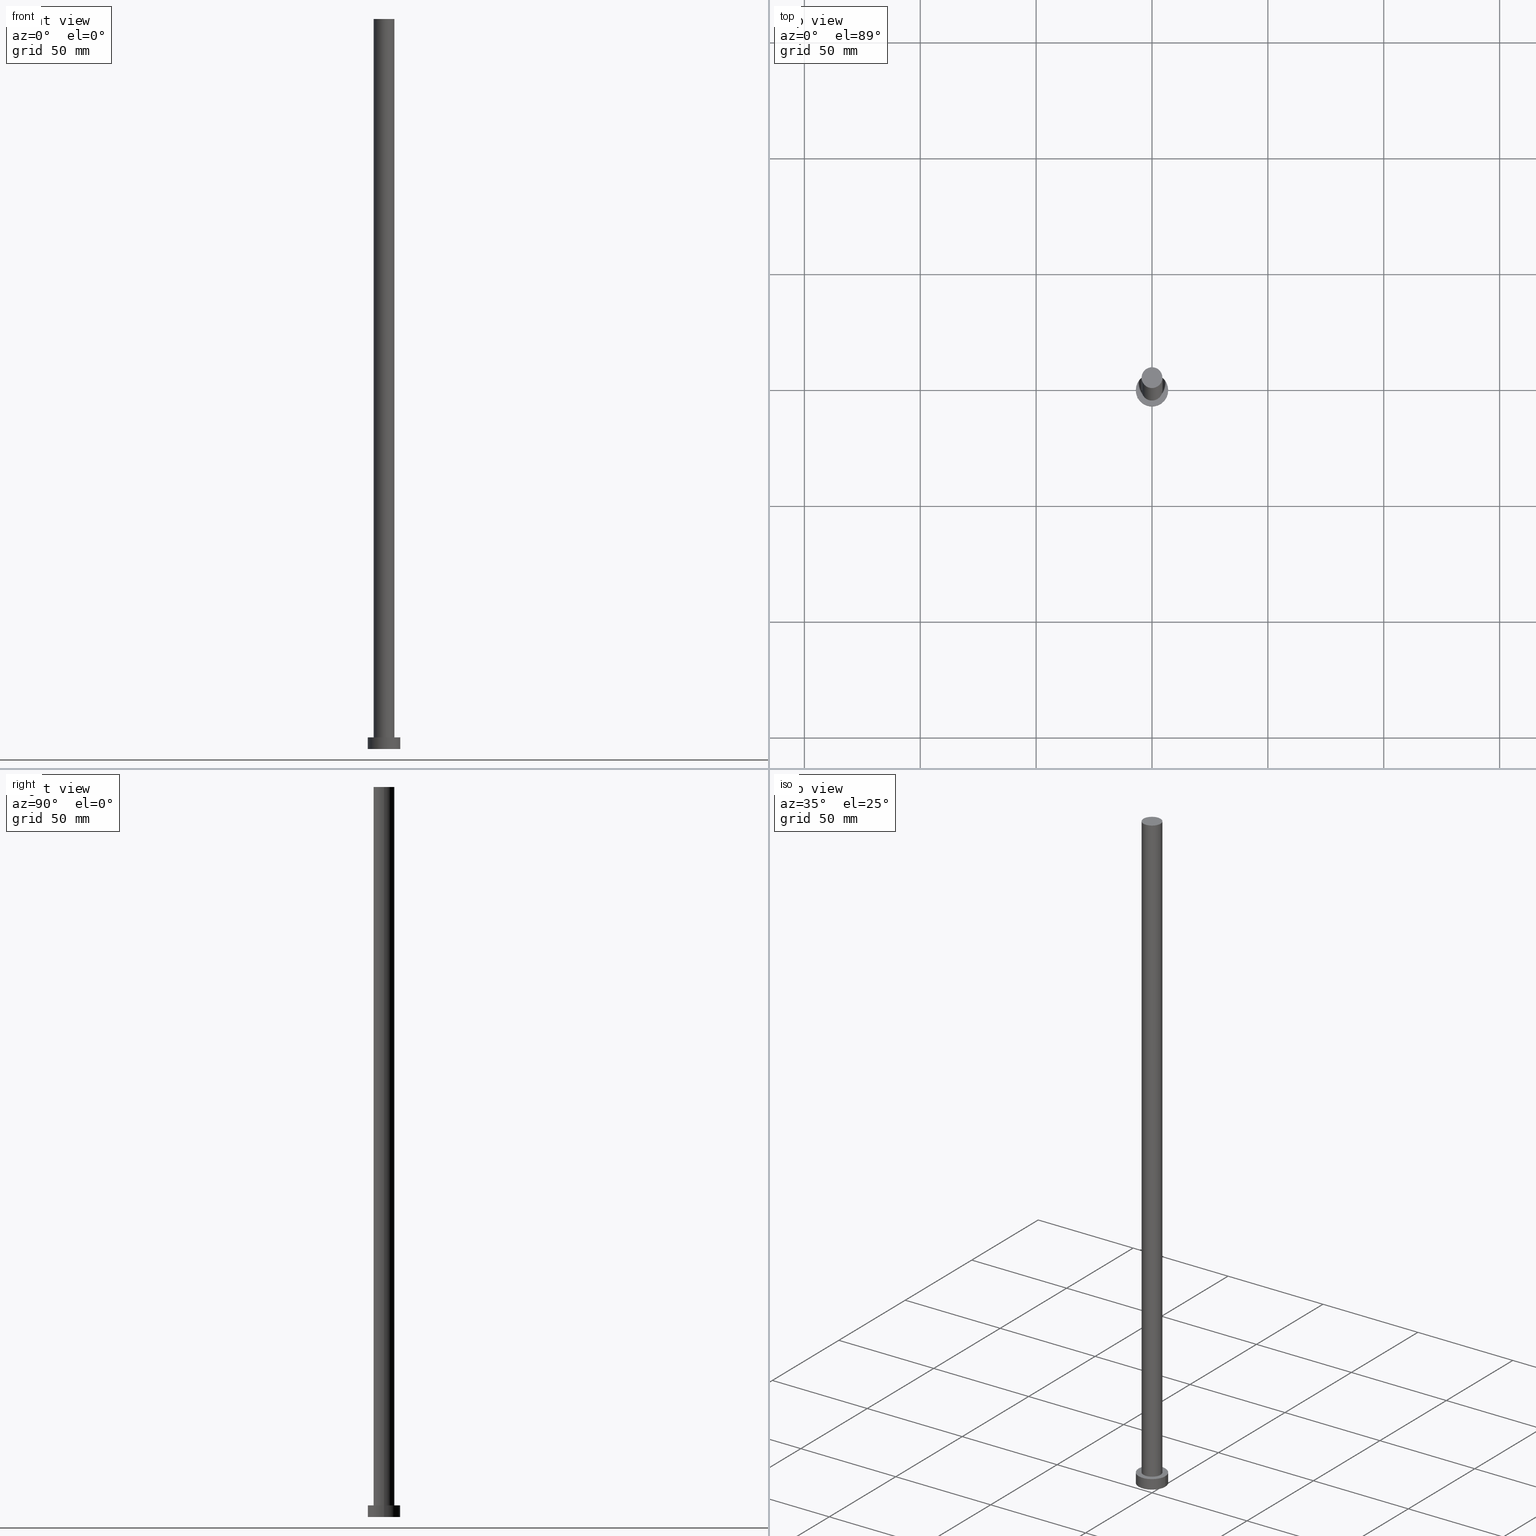
[diagram: canonical four-view strip — front | top / right | iso, engineering-drawing reading convention]
A machine part, canonical four-view strip (front | top / right | iso — engineering-drawing reading convention). The complete STEP part file that produces these views, byte-faithful:
ISO-10303-21;
HEADER;
FILE_DESCRIPTION (( 'STEP AP203' ),
    '1' );
FILE_NAME ('78ef.STEP',
    '2023-02-13T10:50:23',
    ( '' ),
    ( '' ),
    'SwSTEP 2.0',
    'SolidWorks 2019',
    '' );
FILE_SCHEMA (( 'CONFIG_CONTROL_DESIGN' ));
ENDSEC;

DATA;
#1 = FACE_OUTER_BOUND ( 'NONE', #218, .T. ) ;
#2 = APPLICATION_CONTEXT ( 'configuration controlled 3d designs of mechanical parts and assemblies' ) ;
#3 = PRODUCT_DEFINITION_SHAPE ( 'NONE', 'NONE',  #20 ) ;
#4 = EDGE_CURVE ( 'NONE', #100, #195, #245, .T. ) ;
#5 = DIRECTION ( 'NONE',  ( 0.000000000000000000, 0.000000000000000000, 1.000000000000000000 ) ) ;
#6 = DIRECTION ( 'NONE',  ( 1.000000000000000000, 0.000000000000000000, 0.000000000000000000 ) ) ;
#7 = EDGE_CURVE ( 'NONE', #250, #55, #123, .T. ) ;
#8 = ADVANCED_FACE ( 'NONE', ( #180 ), #210, .F. ) ;
#9 = AXIS2_PLACEMENT_3D ( 'NONE', #122, #124, #255 ) ;
#10 = LINE ( 'NONE', #239, #185 ) ;
#11 = PRODUCT_DEFINITION_FORMATION_WITH_SPECIFIED_SOURCE ( 'LIBOVOLN�', '', #229, .NOT_KNOWN. ) ;
#12 = PERSON_AND_ORGANIZATION ( #166, #129 ) ;
#13 = DIRECTION ( 'NONE',  ( 1.000000000000000000, 0.000000000000000000, 0.000000000000000000 ) ) ;
#14 = APPLICATION_PROTOCOL_DEFINITION ( 'international standard', 'config_control_design', 1994, #40 ) ;
#15 = EDGE_LOOP ( 'NONE', ( #192, #200 ) ) ;
#16 = ORIENTED_EDGE ( 'NONE', *, *, #34, .T. ) ;
#17 = PERSON_AND_ORGANIZATION ( #166, #129 ) ;
#18 = ADVANCED_FACE ( 'NONE', ( #1 ), #141, .T. ) ;
#19 = DATE_TIME_ROLE ( 'classification_date' ) ;
#20 = PRODUCT_DEFINITION ( 'NEZN�M�', '', #11, #253 ) ;
#21 = EDGE_LOOP ( 'NONE', ( #116, #236, #16, #215 ) ) ;
#22 = APPROVAL_PERSON_ORGANIZATION ( #17, #126, #101 ) ;
#23 = ORIENTED_EDGE ( 'NONE', *, *, #224, .T. ) ;
#24 = APPROVAL_DATE_TIME ( #81, #126 ) ;
#25 = CARTESIAN_POINT ( 'NONE',  ( 7.000000000000000000, 8.572527594031473190E-16, 5.000000000000000000 ) ) ;
#26 = CARTESIAN_POINT ( 'NONE',  ( -7.000000000000000000, 0.000000000000000000, 0.000000000000000000 ) ) ;
#27 = APPROVAL_PERSON_ORGANIZATION ( #131, #155, #228 ) ;
#28 = CC_DESIGN_PERSON_AND_ORGANIZATION_ASSIGNMENT ( #65, #217, ( #11 ) ) ;
#29 = CARTESIAN_POINT ( 'NONE',  ( 0.000000000000000000, 0.000000000000000000, 315.0000000000000000 ) ) ;
#30 = CC_DESIGN_PERSON_AND_ORGANIZATION_ASSIGNMENT ( #12, #152, ( #20 ) ) ;
#31 = DIRECTION ( 'NONE',  ( 1.000000000000000000, 0.000000000000000000, -0.000000000000000000 ) ) ;
#32 = CARTESIAN_POINT ( 'NONE',  ( -7.000000000000000000, 0.000000000000000000, 5.000000000000000000 ) ) ;
#33 = DIRECTION ( 'NONE',  ( -1.000000000000000000, 0.000000000000000000, 0.000000000000000000 ) ) ;
#34 = EDGE_CURVE ( 'NONE', #100, #121, #89, .T. ) ;
#35 = DATE_AND_TIME ( #213, #223 ) ;
#36 = DIRECTION ( 'NONE',  ( -0.000000000000000000, -0.000000000000000000, -1.000000000000000000 ) ) ;
#37 = PRODUCT_RELATED_PRODUCT_CATEGORY ( 'detail', '', ( #229 ) ) ;
#38 = EDGE_LOOP ( 'NONE', ( #156, #249, #78, #175 ) ) ;
#39 = SECURITY_CLASSIFICATION_LEVEL ( 'unclassified' ) ;
#40 = APPLICATION_CONTEXT ( 'configuration controlled 3d designs of mechanical parts and assemblies' ) ;
#41 = COORDINATED_UNIVERSAL_TIME_OFFSET ( 1, 0, .AHEAD. ) ;
#42 = VERTEX_POINT ( 'NONE', #222 ) ;
#43 = DIRECTION ( 'NONE',  ( 1.000000000000000000, 0.000000000000000000, 0.000000000000000000 ) ) ;
#44 = EDGE_CURVE ( 'NONE', #55, #250, #157, .T. ) ;
#45 = CYLINDRICAL_SURFACE ( 'NONE', #119, 7.000000000000000000 ) ;
#46 = CYLINDRICAL_SURFACE ( 'NONE', #74, 7.000000000000000000 ) ;
#47 = AXIS2_PLACEMENT_3D ( 'NONE', #242, #183, #31 ) ;
#48 = DIRECTION ( 'NONE',  ( 0.000000000000000000, 0.000000000000000000, 1.000000000000000000 ) ) ;
#49 = DIRECTION ( 'NONE',  ( 0.000000000000000000, 0.000000000000000000, 1.000000000000000000 ) ) ;
#50 = ADVANCED_FACE ( 'NONE', ( #68 ), #45, .T. ) ;
#51 = COORDINATED_UNIVERSAL_TIME_OFFSET ( 1, 0, .AHEAD. ) ;
#52 = VECTOR ( 'NONE', #36, 1000.000000000000000 ) ;
#53 = PERSON_AND_ORGANIZATION_ROLE ( 'design_owner' ) ;
#54 = PERSON_AND_ORGANIZATION ( #166, #129 ) ;
#55 = VERTEX_POINT ( 'NONE', #32 ) ;
#56 = CLOSED_SHELL ( 'NONE', ( #18, #60, #50, #243, #8, #193, #184 ) ) ;
#57 = AXIS2_PLACEMENT_3D ( 'NONE', #227, #172, #196 ) ;
#58 = ORIENTED_EDGE ( 'NONE', *, *, #4, .T. ) ;
#59 = COORDINATED_UNIVERSAL_TIME_OFFSET ( 1, 0, .AHEAD. ) ;
#60 = ADVANCED_FACE ( 'NONE', ( #108 ), #46, .T. ) ;
#61 = ORIENTED_EDGE ( 'NONE', *, *, #34, .F. ) ;
#62 = DIRECTION ( 'NONE',  ( 0.000000000000000000, 0.000000000000000000, 1.000000000000000000 ) ) ;
#63 = SECURITY_CLASSIFICATION ( '', '', #39 ) ;
#64 = ADVANCED_BREP_SHAPE_REPRESENTATION ( '78ef', ( #99, #232 ), #226 ) ;
#65 = PERSON_AND_ORGANIZATION ( #166, #129 ) ;
#66 = DIRECTION ( 'NONE',  ( -1.000000000000000000, 0.000000000000000000, 0.000000000000000000 ) ) ;
#67 = PERSON_AND_ORGANIZATION_ROLE ( 'classification_officer' ) ;
#68 = FACE_OUTER_BOUND ( 'NONE', #95, .T. ) ;
#69 = CARTESIAN_POINT ( 'NONE',  ( 0.000000000000000000, 0.000000000000000000, 5.000000000000000000 ) ) ;
#70 = DIRECTION ( 'NONE',  ( 1.000000000000000000, 0.000000000000000000, 0.000000000000000000 ) ) ;
#71 = CARTESIAN_POINT ( 'NONE',  ( 0.000000000000000000, 0.000000000000000000, 0.000000000000000000 ) ) ;
#72 = EDGE_CURVE ( 'NONE', #195, #100, #92, .T. ) ;
#73 =( NAMED_UNIT ( * ) PLANE_ANGLE_UNIT ( ) SI_UNIT ( $, .RADIAN. ) );
#74 = AXIS2_PLACEMENT_3D ( 'NONE', #142, #160, #66 ) ;
#75 = DATE_AND_TIME ( #128, #146 ) ;
#76 = ORIENTED_EDGE ( 'NONE', *, *, #169, .F. ) ;
#77 = CC_DESIGN_PERSON_AND_ORGANIZATION_ASSIGNMENT ( #211, #53, ( #229 ) ) ;
#78 = ORIENTED_EDGE ( 'NONE', *, *, #104, .T. ) ;
#79 = VECTOR ( 'NONE', #219, 1000.000000000000000 ) ;
#80 = CARTESIAN_POINT ( 'NONE',  ( 0.000000000000000000, 0.000000000000000000, 5.000000000000000000 ) ) ;
#81 = DATE_AND_TIME ( #241, #252 ) ;
#82 = EDGE_CURVE ( 'NONE', #55, #135, #10, .T. ) ;
#83 = DIRECTION ( 'NONE',  ( 1.000000000000000000, 0.000000000000000000, 0.000000000000000000 ) ) ;
#84 = CIRCLE ( 'NONE', #186, 7.000000000000000000 ) ;
#85 = CC_DESIGN_PERSON_AND_ORGANIZATION_ASSIGNMENT ( #136, #138, ( #11 ) ) ;
#86 = VECTOR ( 'NONE', #144, 1000.000000000000000 ) ;
#87 = DIRECTION ( 'NONE',  ( 0.000000000000000000, 0.000000000000000000, 1.000000000000000000 ) ) ;
#88 = CC_DESIGN_PERSON_AND_ORGANIZATION_ASSIGNMENT ( #117, #67, ( #63 ) ) ;
#89 = LINE ( 'NONE', #207, #79 ) ;
#90 = AXIS2_PLACEMENT_3D ( 'NONE', #29, #204, #167 ) ;
#91 = DIRECTION ( 'NONE',  ( -0.000000000000000000, -0.000000000000000000, -1.000000000000000000 ) ) ;
#92 = CIRCLE ( 'NONE', #150, 4.500000000000000888 ) ;
#93 = CC_DESIGN_SECURITY_CLASSIFICATION ( #63, ( #11 ) ) ;
#94 =( LENGTH_UNIT ( ) NAMED_UNIT ( * ) SI_UNIT ( .MILLI., .METRE. ) );
#95 = EDGE_LOOP ( 'NONE', ( #158, #97, #115, #216 ) ) ;
#96 = FACE_OUTER_BOUND ( 'NONE', #21, .T. ) ;
#97 = ORIENTED_EDGE ( 'NONE', *, *, #44, .F. ) ;
#98 = ORIENTED_EDGE ( 'NONE', *, *, #72, .T. ) ;
#99 = MANIFOLD_SOLID_BREP ( 'P�idat vysunut�m3', #56 ) ;
#100 = VERTEX_POINT ( 'NONE', #220 ) ;
#101 = APPROVAL_ROLE ( '' ) ;
#102 = CARTESIAN_POINT ( 'NONE',  ( -4.500000000000000888, 0.000000000000000000, 5.000000000000000000 ) ) ;
#103 = CALENDAR_DATE ( 2023, 13, 2 ) ;
#104 = EDGE_CURVE ( 'NONE', #42, #135, #84, .T. ) ;
#105 = CARTESIAN_POINT ( 'NONE',  ( 0.000000000000000000, 0.000000000000000000, 0.000000000000000000 ) ) ;
#106 = DIRECTION ( 'NONE',  ( -0.000000000000000000, -0.000000000000000000, -1.000000000000000000 ) ) ;
#107 = CARTESIAN_POINT ( 'NONE',  ( 0.000000000000000000, 0.000000000000000000, 5.000000000000000000 ) ) ;
#108 = FACE_OUTER_BOUND ( 'NONE', #38, .T. ) ;
#109 = CC_DESIGN_APPROVAL ( #126, ( #63 ) ) ;
#110 = DIRECTION ( 'NONE',  ( 1.000000000000000000, 0.000000000000000000, -0.000000000000000000 ) ) ;
#111 = CARTESIAN_POINT ( 'NONE',  ( 4.500000000000000888, 5.510910596163089556E-16, 315.0000000000000000 ) ) ;
#112 = EDGE_LOOP ( 'NONE', ( #58, #98 ) ) ;
#113 = EDGE_CURVE ( 'NONE', #250, #42, #202, .T. ) ;
#114 = DIRECTION ( 'NONE',  ( 0.000000000000000000, 0.000000000000000000, 1.000000000000000000 ) ) ;
#115 = ORIENTED_EDGE ( 'NONE', *, *, #82, .T. ) ;
#116 = ORIENTED_EDGE ( 'NONE', *, *, #224, .F. ) ;
#117 = PERSON_AND_ORGANIZATION ( #166, #129 ) ;
#118 = VERTEX_POINT ( 'NONE', #225 ) ;
#119 = AXIS2_PLACEMENT_3D ( 'NONE', #69, #188, #127 ) ;
#120 = AXIS2_PLACEMENT_3D ( 'NONE', #80, #48, #147 ) ;
#121 = VERTEX_POINT ( 'NONE', #102 ) ;
#122 = CARTESIAN_POINT ( 'NONE',  ( 0.000000000000000000, 0.000000000000000000, 315.0000000000000000 ) ) ;
#123 = CIRCLE ( 'NONE', #206, 7.000000000000000000 ) ;
#124 = DIRECTION ( 'NONE',  ( -0.000000000000000000, -0.000000000000000000, -1.000000000000000000 ) ) ;
#125 = DIRECTION ( 'NONE',  ( 1.000000000000000000, 0.000000000000000000, 0.000000000000000000 ) ) ;
#126 = APPROVAL ( #181, 'NEUR�EN�' ) ;
#127 = DIRECTION ( 'NONE',  ( -1.000000000000000000, 0.000000000000000000, 0.000000000000000000 ) ) ;
#128 = CALENDAR_DATE ( 2023, 13, 2 ) ;
#129 = ORGANIZATION ( 'NEUR�EN�', 'NEUR�EN�', '' ) ;
#130 = CC_DESIGN_DATE_AND_TIME_ASSIGNMENT ( #35, #174, ( #20 ) ) ;
#131 = PERSON_AND_ORGANIZATION ( #166, #129 ) ;
#132 = COORDINATED_UNIVERSAL_TIME_OFFSET ( 1, 0, .AHEAD. ) ;
#133 = CC_DESIGN_APPROVAL ( #164, ( #11 ) ) ;
#134 = CARTESIAN_POINT ( 'NONE',  ( 4.500000000000000888, 5.510910596163089556E-16, 315.0000000000000000 ) ) ;
#135 = VERTEX_POINT ( 'NONE', #26 ) ;
#136 = PERSON_AND_ORGANIZATION ( #166, #129 ) ;
#137 = ORIENTED_EDGE ( 'NONE', *, *, #145, .T. ) ;
#138 = PERSON_AND_ORGANIZATION_ROLE ( 'creator' ) ;
#139 = AXIS2_PLACEMENT_3D ( 'NONE', #105, #209, #6 ) ;
#140 = CARTESIAN_POINT ( 'NONE',  ( 0.000000000000000000, 0.000000000000000000, 5.000000000000000000 ) ) ;
#141 = CYLINDRICAL_SURFACE ( 'NONE', #9, 4.500000000000000888 ) ;
#142 = CARTESIAN_POINT ( 'NONE',  ( 0.000000000000000000, 0.000000000000000000, 5.000000000000000000 ) ) ;
#143 = CC_DESIGN_DATE_AND_TIME_ASSIGNMENT ( #201, #19, ( #63 ) ) ;
#144 = DIRECTION ( 'NONE',  ( -0.000000000000000000, -0.000000000000000000, -1.000000000000000000 ) ) ;
#145 = EDGE_CURVE ( 'NONE', #118, #121, #247, .T. ) ;
#146 = LOCAL_TIME ( 11, 50, 23.00000000000000000, #51 ) ;
#147 = DIRECTION ( 'NONE',  ( 1.000000000000000000, 0.000000000000000000, 0.000000000000000000 ) ) ;
#148 = DIRECTION ( 'NONE',  ( 0.000000000000000000, 0.000000000000000000, 1.000000000000000000 ) ) ;
#149 = FACE_OUTER_BOUND ( 'NONE', #178, .T. ) ;
#150 = AXIS2_PLACEMENT_3D ( 'NONE', #189, #87, #70 ) ;
#151 = AXIS2_PLACEMENT_3D ( 'NONE', #154, #114, #110 ) ;
#152 = PERSON_AND_ORGANIZATION_ROLE ( 'creator' ) ;
#153 = ORIENTED_EDGE ( 'NONE', *, *, #44, .T. ) ;
#154 = CARTESIAN_POINT ( 'NONE',  ( 0.000000000000000000, 0.000000000000000000, 5.000000000000000000 ) ) ;
#155 = APPROVAL ( #233, 'NEUR�EN�' ) ;
#156 = ORIENTED_EDGE ( 'NONE', *, *, #7, .F. ) ;
#157 = CIRCLE ( 'NONE', #199, 7.000000000000000000 ) ;
#158 = ORIENTED_EDGE ( 'NONE', *, *, #113, .F. ) ;
#159 = APPROVAL_STATUS ( 'not_yet_approved' ) ;
#160 = DIRECTION ( 'NONE',  ( -0.000000000000000000, -0.000000000000000000, -1.000000000000000000 ) ) ;
#161 = SHAPE_DEFINITION_REPRESENTATION ( #3, #64 ) ;
#162 = LOCAL_TIME ( 11, 50, 23.00000000000000000, #59 ) ;
#163 = CARTESIAN_POINT ( 'NONE',  ( 0.000000000000000000, 0.000000000000000000, 5.000000000000000000 ) ) ;
#164 = APPROVAL ( #159, 'NEUR�EN�' ) ;
#165 = LOCAL_TIME ( 11, 50, 23.00000000000000000, #221 ) ;
#166 = PERSON ( 'NEUR�EN�', 'NEUR�EN�', 'NEUR�EN�', ('NEUR�EN�'), ('NEUR�EN�'), ('NEUR�EN�') ) ;
#167 = DIRECTION ( 'NONE',  ( 1.000000000000000000, 0.000000000000000000, 0.000000000000000000 ) ) ;
#168 = FACE_OUTER_BOUND ( 'NONE', #112, .T. ) ;
#169 = EDGE_CURVE ( 'NONE', #121, #118, #170, .T. ) ;
#170 = CIRCLE ( 'NONE', #231, 4.500000000000000888 ) ;
#171 = EDGE_CURVE ( 'NONE', #135, #42, #182, .T. ) ;
#172 = DIRECTION ( 'NONE',  ( 0.000000000000000000, 0.000000000000000000, 1.000000000000000000 ) ) ;
#173 = LINE ( 'NONE', #111, #52 ) ;
#174 = DATE_TIME_ROLE ( 'creation_date' ) ;
#175 = ORIENTED_EDGE ( 'NONE', *, *, #82, .F. ) ;
#176 = CARTESIAN_POINT ( 'NONE',  ( 0.000000000000000000, 0.000000000000000000, 315.0000000000000000 ) ) ;
#177 = CALENDAR_DATE ( 2023, 13, 2 ) ;
#178 = EDGE_LOOP ( 'NONE', ( #153, #234 ) ) ;
#179 = UNCERTAINTY_MEASURE_WITH_UNIT (LENGTH_MEASURE( 1.000000000000000082E-05 ), #94, 'distance_accuracy_value', 'NONE');
#180 = FACE_OUTER_BOUND ( 'NONE', #15, .T. ) ;
#181 = APPROVAL_STATUS ( 'not_yet_approved' ) ;
#182 = CIRCLE ( 'NONE', #139, 7.000000000000000000 ) ;
#183 = DIRECTION ( 'NONE',  ( 0.000000000000000000, 0.000000000000000000, 1.000000000000000000 ) ) ;
#184 = ADVANCED_FACE ( 'NONE', ( #168 ), #246, .T. ) ;
#185 = VECTOR ( 'NONE', #106, 1000.000000000000000 ) ;
#186 = AXIS2_PLACEMENT_3D ( 'NONE', #187, #62, #244 ) ;
#187 = CARTESIAN_POINT ( 'NONE',  ( 0.000000000000000000, 0.000000000000000000, 0.000000000000000000 ) ) ;
#188 = DIRECTION ( 'NONE',  ( -0.000000000000000000, -0.000000000000000000, -1.000000000000000000 ) ) ;
#189 = CARTESIAN_POINT ( 'NONE',  ( 0.000000000000000000, 0.000000000000000000, 315.0000000000000000 ) ) ;
#190 = MECHANICAL_CONTEXT ( 'NONE', #2, 'mechanical' ) ;
#191 = FACE_BOUND ( 'NONE', #238, .T. ) ;
#192 = ORIENTED_EDGE ( 'NONE', *, *, #171, .F. ) ;
#193 = ADVANCED_FACE ( 'NONE', ( #96 ), #214, .T. ) ;
#194 = CARTESIAN_POINT ( 'NONE',  ( 7.000000000000000000, 8.572527594031473190E-16, 5.000000000000000000 ) ) ;
#195 = VERTEX_POINT ( 'NONE', #134 ) ;
#196 = DIRECTION ( 'NONE',  ( 1.000000000000000000, 0.000000000000000000, -0.000000000000000000 ) ) ;
#197 = DATE_AND_TIME ( #177, #165 ) ;
#198 = ORIENTED_EDGE ( 'NONE', *, *, #72, .F. ) ;
#199 = AXIS2_PLACEMENT_3D ( 'NONE', #107, #49, #83 ) ;
#200 = ORIENTED_EDGE ( 'NONE', *, *, #104, .F. ) ;
#201 = DATE_AND_TIME ( #103, #162 ) ;
#202 = LINE ( 'NONE', #25, #86 ) ;
#203 = APPROVAL_ROLE ( '' ) ;
#204 = DIRECTION ( 'NONE',  ( 0.000000000000000000, 0.000000000000000000, 1.000000000000000000 ) ) ;
#205 = CC_DESIGN_APPROVAL ( #155, ( #20 ) ) ;
#206 = AXIS2_PLACEMENT_3D ( 'NONE', #140, #5, #43 ) ;
#207 = CARTESIAN_POINT ( 'NONE',  ( -4.500000000000000888, 0.000000000000000000, 315.0000000000000000 ) ) ;
#208 = AXIS2_PLACEMENT_3D ( 'NONE', #176, #91, #33 ) ;
#209 = DIRECTION ( 'NONE',  ( 0.000000000000000000, 0.000000000000000000, 1.000000000000000000 ) ) ;
#210 = PLANE ( 'NONE',  #47 ) ;
#211 = PERSON_AND_ORGANIZATION ( #166, #129 ) ;
#212 = APPROVAL_DATE_TIME ( #75, #155 ) ;
#213 = CALENDAR_DATE ( 2023, 13, 2 ) ;
#214 = CYLINDRICAL_SURFACE ( 'NONE', #208, 4.500000000000000888 ) ;
#215 = ORIENTED_EDGE ( 'NONE', *, *, #169, .T. ) ;
#216 = ORIENTED_EDGE ( 'NONE', *, *, #171, .T. ) ;
#217 = PERSON_AND_ORGANIZATION_ROLE ( 'design_supplier' ) ;
#218 = EDGE_LOOP ( 'NONE', ( #198, #23, #137, #61 ) ) ;
#219 = DIRECTION ( 'NONE',  ( -0.000000000000000000, -0.000000000000000000, -1.000000000000000000 ) ) ;
#220 = CARTESIAN_POINT ( 'NONE',  ( -4.500000000000000888, 0.000000000000000000, 315.0000000000000000 ) ) ;
#221 = COORDINATED_UNIVERSAL_TIME_OFFSET ( 1, 0, .AHEAD. ) ;
#222 = CARTESIAN_POINT ( 'NONE',  ( 7.000000000000000000, 8.572527594031473190E-16, 0.000000000000000000 ) ) ;
#223 = LOCAL_TIME ( 11, 50, 23.00000000000000000, #132 ) ;
#224 = EDGE_CURVE ( 'NONE', #195, #118, #173, .T. ) ;
#225 = CARTESIAN_POINT ( 'NONE',  ( 4.500000000000000888, 5.510910596163089556E-16, 5.000000000000000000 ) ) ;
#226 =( GEOMETRIC_REPRESENTATION_CONTEXT ( 3 ) GLOBAL_UNCERTAINTY_ASSIGNED_CONTEXT ( ( #179 ) ) GLOBAL_UNIT_ASSIGNED_CONTEXT ( ( #94, #73, #235 ) ) REPRESENTATION_CONTEXT ( 'NONE', 'WORKASPACE' ) );
#227 = CARTESIAN_POINT ( 'NONE',  ( 0.000000000000000000, 0.000000000000000000, 315.0000000000000000 ) ) ;
#228 = APPROVAL_ROLE ( '' ) ;
#229 = PRODUCT ( '78ef', '78ef', '', ( #190 ) ) ;
#230 = PLANE ( 'NONE',  #151 ) ;
#231 = AXIS2_PLACEMENT_3D ( 'NONE', #163, #240, #125 ) ;
#232 = AXIS2_PLACEMENT_3D ( 'NONE', #71, #148, #13 ) ;
#233 = APPROVAL_STATUS ( 'not_yet_approved' ) ;
#234 = ORIENTED_EDGE ( 'NONE', *, *, #7, .T. ) ;
#235 =( NAMED_UNIT ( * ) SI_UNIT ( $, .STERADIAN. ) SOLID_ANGLE_UNIT ( ) );
#236 = ORIENTED_EDGE ( 'NONE', *, *, #4, .F. ) ;
#237 = APPROVAL_PERSON_ORGANIZATION ( #54, #164, #203 ) ;
#238 = EDGE_LOOP ( 'NONE', ( #76, #254 ) ) ;
#239 = CARTESIAN_POINT ( 'NONE',  ( -7.000000000000000000, 0.000000000000000000, 5.000000000000000000 ) ) ;
#240 = DIRECTION ( 'NONE',  ( 0.000000000000000000, 0.000000000000000000, 1.000000000000000000 ) ) ;
#241 = CALENDAR_DATE ( 2023, 13, 2 ) ;
#242 = CARTESIAN_POINT ( 'NONE',  ( 0.000000000000000000, 0.000000000000000000, 0.000000000000000000 ) ) ;
#243 = ADVANCED_FACE ( 'NONE', ( #191, #149 ), #230, .T. ) ;
#244 = DIRECTION ( 'NONE',  ( 1.000000000000000000, 0.000000000000000000, 0.000000000000000000 ) ) ;
#245 = CIRCLE ( 'NONE', #90, 4.500000000000000888 ) ;
#246 = PLANE ( 'NONE',  #57 ) ;
#247 = CIRCLE ( 'NONE', #120, 4.500000000000000888 ) ;
#248 = APPLICATION_PROTOCOL_DEFINITION ( 'international standard', 'config_control_design', 1994, #2 ) ;
#249 = ORIENTED_EDGE ( 'NONE', *, *, #113, .T. ) ;
#250 = VERTEX_POINT ( 'NONE', #194 ) ;
#251 = APPROVAL_DATE_TIME ( #197, #164 ) ;
#252 = LOCAL_TIME ( 11, 50, 23.00000000000000000, #41 ) ;
#253 = DESIGN_CONTEXT ( 'detailed design', #40, 'design' ) ;
#254 = ORIENTED_EDGE ( 'NONE', *, *, #145, .F. ) ;
#255 = DIRECTION ( 'NONE',  ( -1.000000000000000000, 0.000000000000000000, 0.000000000000000000 ) ) ;
ENDSEC;
END-ISO-10303-21;
